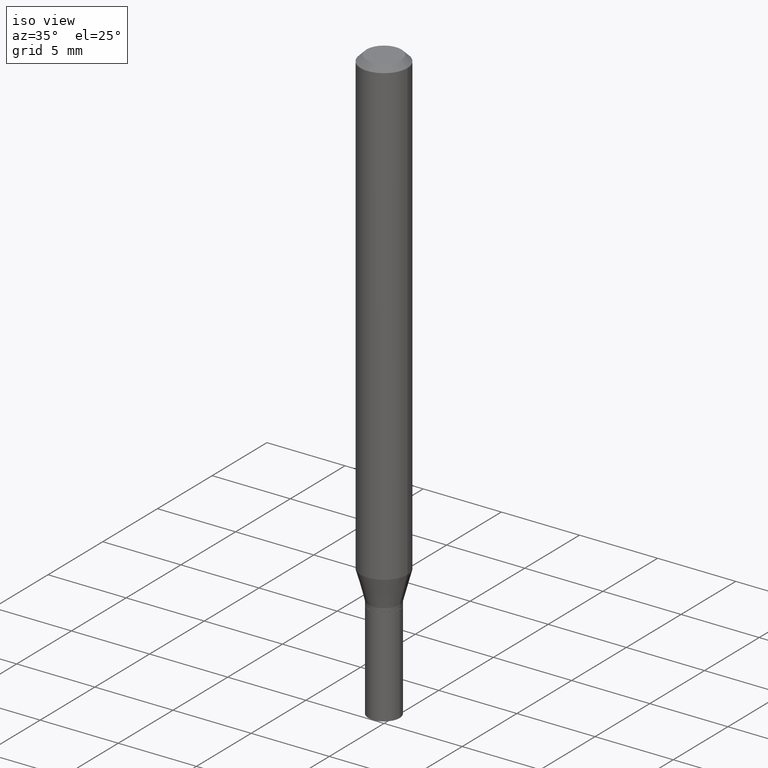
[diagram: clean part render]
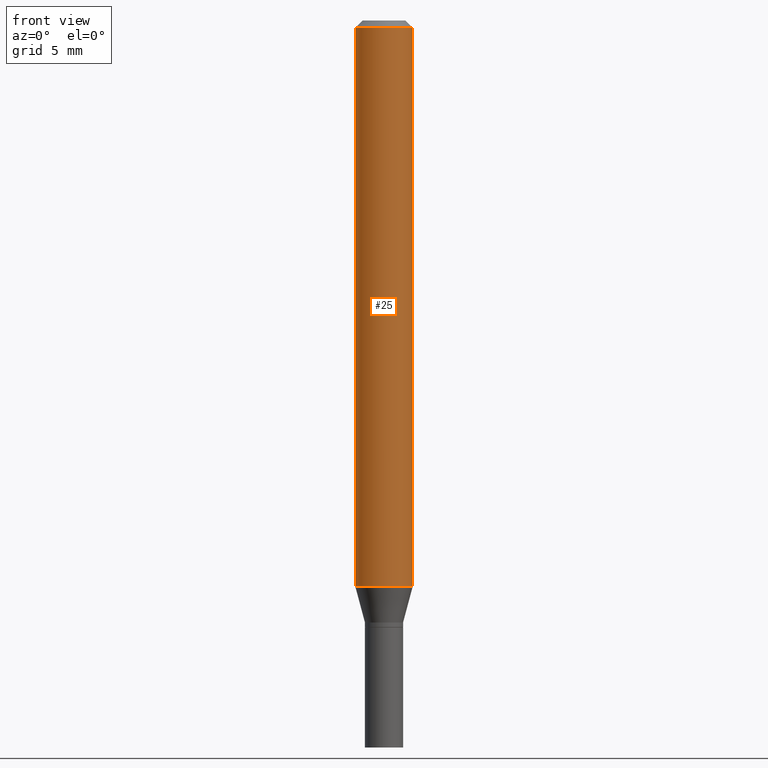
[diagram: tour spotlight — one face highlighted and labeled with its STEP entity id]
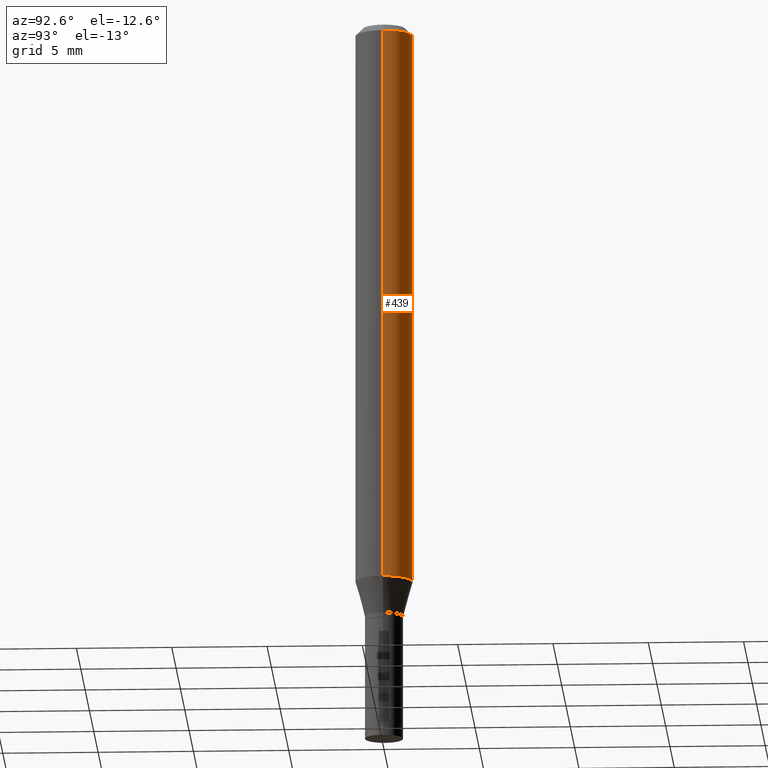
[diagram: tour spotlight — one face highlighted and labeled with its STEP entity id]
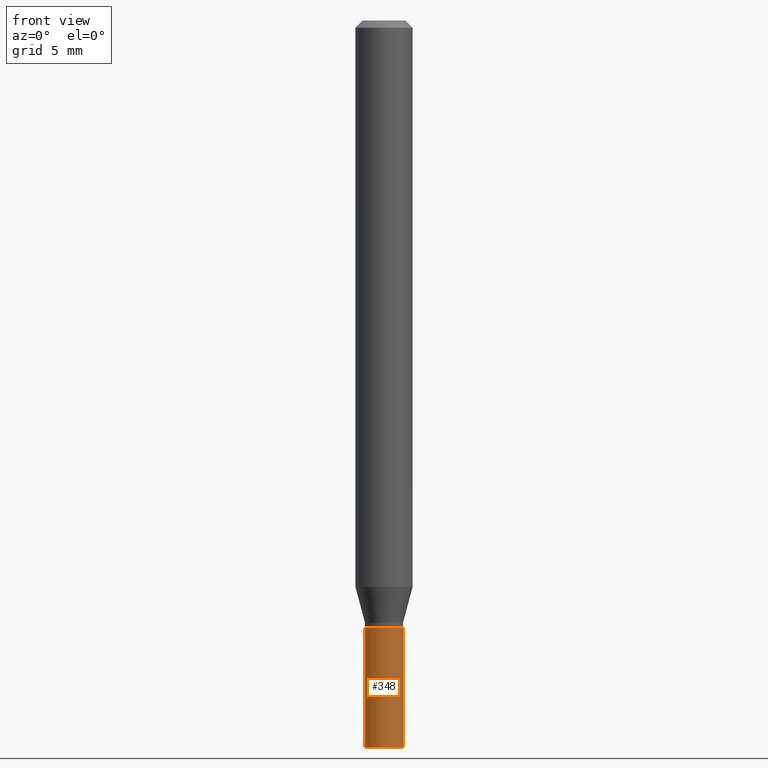
[diagram: tour spotlight — one face highlighted and labeled with its STEP entity id]
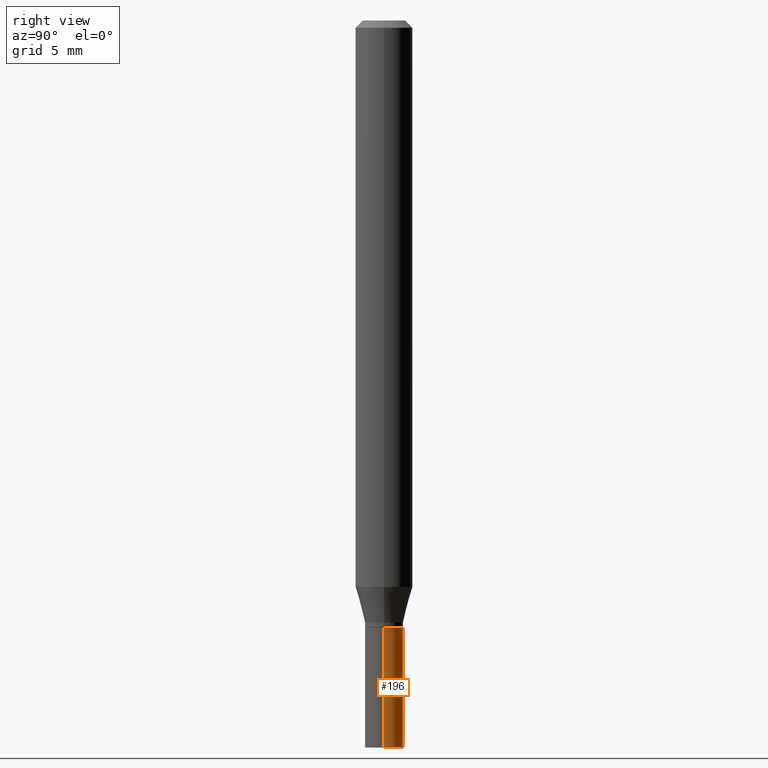
[diagram: tour spotlight — one face highlighted and labeled with its STEP entity id]
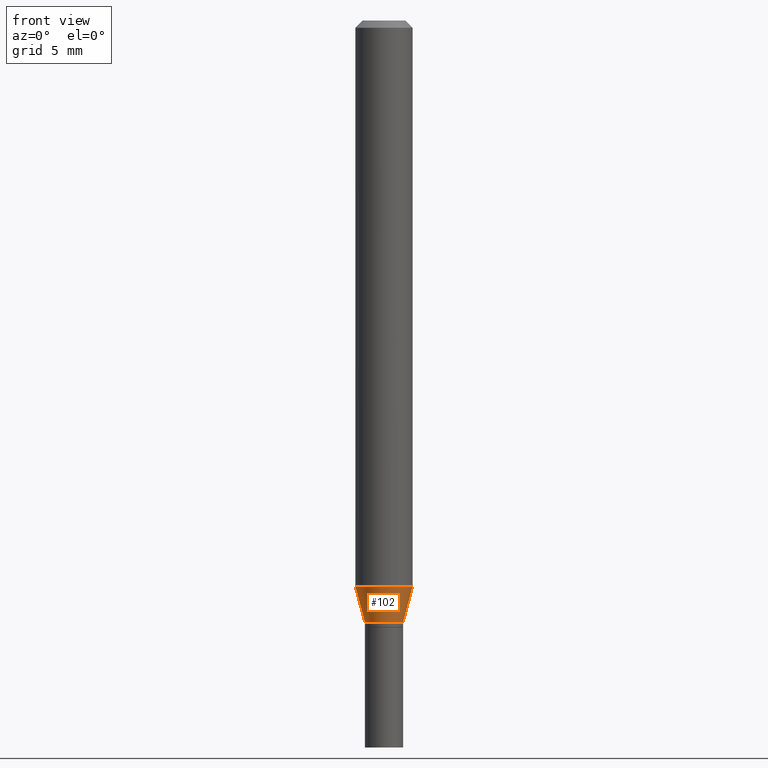
[diagram: tour spotlight — one face highlighted and labeled with its STEP entity id]
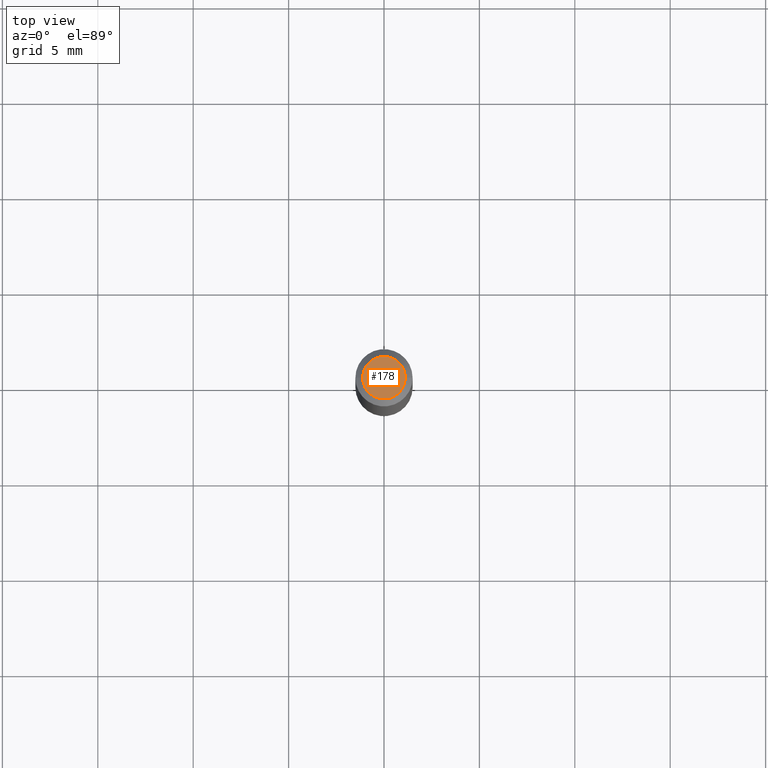
[diagram: tour spotlight — one face highlighted and labeled with its STEP entity id]
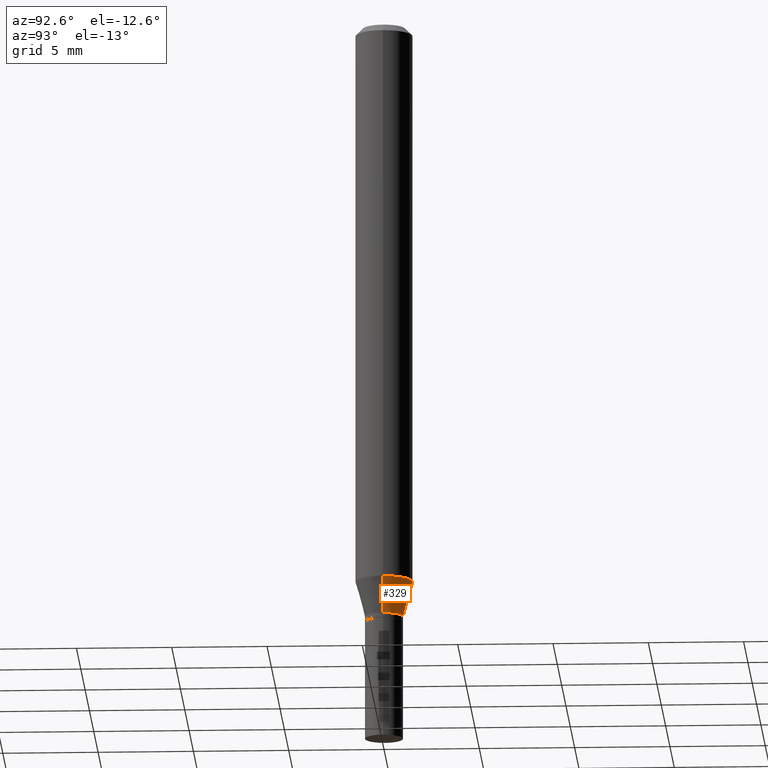
[diagram: tour spotlight — one face highlighted and labeled with its STEP entity id]
A machine part: a face-by-face anatomy tour. The part has 16 B-rep faces; the first image is the clean iso view, then the 7 largest visible faces are spotlighted one at a time (largest first), each with its STEP entity span.

Face 1 — front view, entity #25. In plain terms, the highlighted cylindrical surface (edge-blend (fillet) strip) has radius 1.4999 mm, axis along (-0, 0, 1).
Definition (entity closure, byte-faithful):
#18 = CARTESIAN_POINT ( 'NONE',  ( 0.000000000000000000, 0.000000000000000000, 0.000000000000000000 ) ) ;
#20 = DIRECTION ( 'NONE',  ( 1.000000000000000000, -6.982962677686266711E-15, 0.000000000000000000 ) ) ;
#24 = DIRECTION ( 'NONE',  ( -2.445468806185136597E-29, 3.491481338843145583E-15, 1.000000000000000000 ) ) ;
#25 = ADVANCED_FACE ( 'NONE', ( #55 ), #110, .T. ) ;
#27 = CARTESIAN_POINT ( 'NONE',  ( 0.05904999999999999832, -4.123439461173740327E-16, 2.879382386107500220E-30 ) ) ;
#44 = AXIS2_PLACEMENT_3D ( 'NONE', #18, #328, #414 ) ;
#55 = FACE_OUTER_BOUND ( 'NONE', #342, .T. ) ;
#63 = VERTEX_POINT ( 'NONE', #441 ) ;
#83 = AXIS2_PLACEMENT_3D ( 'NONE', #219, #111, #20 ) ;
#87 = CARTESIAN_POINT ( 'NONE',  ( 2.857477964771687854E-29, -4.079721223563435908E-15, -1.168478599090893466 ) ) ;
#97 = ORIENTED_EDGE ( 'NONE', *, *, #213, .F. ) ;
#98 = CIRCLE ( 'NONE', #83, 0.05904999999999999832 ) ;
#110 = CYLINDRICAL_SURFACE ( 'NONE', #44, 0.05904999999999999832 ) ;
#111 = DIRECTION ( 'NONE',  ( -2.445468806185136597E-29, 3.491481338843145583E-15, 1.000000000000000000 ) ) ;
#153 = EDGE_CURVE ( 'NONE', #63, #188, #451, .T. ) ;
#168 = VERTEX_POINT ( 'NONE', #461 ) ;
#172 = ORIENTED_EDGE ( 'NONE', *, *, #153, .T. ) ;
#188 = VERTEX_POINT ( 'NONE', #327 ) ;
#190 = ORIENTED_EDGE ( 'NONE', *, *, #273, .F. ) ;
#192 = AXIS2_PLACEMENT_3D ( 'NONE', #87, #24, #220 ) ;
#213 = EDGE_CURVE ( 'NONE', #168, #259, #290, .T. ) ;
#219 = CARTESIAN_POINT ( 'NONE',  ( 3.668203209277705088E-31, -5.237222008264718399E-17, -0.01499999999999999944 ) ) ;
#220 = DIRECTION ( 'NONE',  ( 1.000000000000000000, -6.982962677686273021E-15, 0.000000000000000000 ) ) ;
#233 = DIRECTION ( 'NONE',  ( -2.445468806185136877E-29, 3.491481338843145188E-15, 1.000000000000000000 ) ) ;
#250 = VECTOR ( 'NONE', #297, 39.37007874015748143 ) ;
#259 = VERTEX_POINT ( 'NONE', #401 ) ;
#263 = ORIENTED_EDGE ( 'NONE', *, *, #289, .T. ) ;
#273 = EDGE_CURVE ( 'NONE', #259, #188, #98, .T. ) ;
#289 = EDGE_CURVE ( 'NONE', #168, #63, #410, .T. ) ;
#290 = LINE ( 'NONE', #319, #292 ) ;
#292 = VECTOR ( 'NONE', #233, 39.37007874015748143 ) ;
#297 = DIRECTION ( 'NONE',  ( -2.445468806185136877E-29, 3.491481338843145188E-15, 1.000000000000000000 ) ) ;
#319 = CARTESIAN_POINT ( 'NONE',  ( -0.05904999999999999832, 4.195754854663391478E-16, -2.904631170795521892E-30 ) ) ;
#327 = CARTESIAN_POINT ( 'NONE',  ( 0.05904999999999999832, -4.647161662000212105E-16, -0.01499999999999999944 ) ) ;
#328 = DIRECTION ( 'NONE',  ( -2.445468806185136597E-29, 3.491481338843145583E-15, 1.000000000000000000 ) ) ;
#342 = EDGE_LOOP ( 'NONE', ( #97, #263, #172, #190 ) ) ;
#401 = CARTESIAN_POINT ( 'NONE',  ( -0.05904999999999999832, -1.646471236356702198E-15, -0.01499999999999999944 ) ) ;
#410 = CIRCLE ( 'NONE', #192, 0.05904999999999999832 ) ;
#414 = DIRECTION ( 'NONE',  ( 1.000000000000000000, -6.982962677686266711E-15, 4.876176775795936353E-29 ) ) ;
#441 = CARTESIAN_POINT ( 'NONE',  ( 0.05904999999999999832, -4.492065169680810039E-15, -1.168478599090893466 ) ) ;
#451 = LINE ( 'NONE', #27, #250 ) ;
#461 = CARTESIAN_POINT ( 'NONE',  ( -0.05904999999999999832, -3.660145738097096415E-15, -1.168478599090893466 ) ) ;

Face 2 — auxiliary view, entity #439. In plain terms, the highlighted cylindrical surface (edge-blend (fillet) strip) has radius 1.4999 mm, axis along (-0, 0, 1).
Definition (entity closure, byte-faithful):
#14 = DIRECTION ( 'NONE',  ( 1.000000000000000000, -6.982962677686273021E-15, 0.000000000000000000 ) ) ;
#27 = CARTESIAN_POINT ( 'NONE',  ( 0.05904999999999999832, -4.123439461173740327E-16, 2.879382386107500220E-30 ) ) ;
#45 = AXIS2_PLACEMENT_3D ( 'NONE', #370, #432, #436 ) ;
#47 = EDGE_CURVE ( 'NONE', #63, #168, #446, .T. ) ;
#63 = VERTEX_POINT ( 'NONE', #441 ) ;
#74 = AXIS2_PLACEMENT_3D ( 'NONE', #366, #211, #394 ) ;
#94 = ORIENTED_EDGE ( 'NONE', *, *, #47, .T. ) ;
#108 = CARTESIAN_POINT ( 'NONE',  ( 2.857477964771687854E-29, -4.079721223563435908E-15, -1.168478599090893466 ) ) ;
#141 = ORIENTED_EDGE ( 'NONE', *, *, #181, .F. ) ;
#145 = DIRECTION ( 'NONE',  ( -2.445468806185136597E-29, 3.491481338843145583E-15, 1.000000000000000000 ) ) ;
#153 = EDGE_CURVE ( 'NONE', #63, #188, #451, .T. ) ;
#168 = VERTEX_POINT ( 'NONE', #461 ) ;
#181 = EDGE_CURVE ( 'NONE', #188, #259, #392, .T. ) ;
#188 = VERTEX_POINT ( 'NONE', #327 ) ;
#200 = ORIENTED_EDGE ( 'NONE', *, *, #153, .F. ) ;
#211 = DIRECTION ( 'NONE',  ( -2.445468806185136597E-29, 3.491481338843145583E-15, 1.000000000000000000 ) ) ;
#213 = EDGE_CURVE ( 'NONE', #168, #259, #290, .T. ) ;
#233 = DIRECTION ( 'NONE',  ( -2.445468806185136877E-29, 3.491481338843145188E-15, 1.000000000000000000 ) ) ;
#246 = EDGE_LOOP ( 'NONE', ( #94, #454, #141, #200 ) ) ;
#250 = VECTOR ( 'NONE', #297, 39.37007874015748143 ) ;
#259 = VERTEX_POINT ( 'NONE', #401 ) ;
#290 = LINE ( 'NONE', #319, #292 ) ;
#292 = VECTOR ( 'NONE', #233, 39.37007874015748143 ) ;
#297 = DIRECTION ( 'NONE',  ( -2.445468806185136877E-29, 3.491481338843145188E-15, 1.000000000000000000 ) ) ;
#312 = AXIS2_PLACEMENT_3D ( 'NONE', #108, #145, #14 ) ;
#318 = CYLINDRICAL_SURFACE ( 'NONE', #45, 0.05904999999999999832 ) ;
#319 = CARTESIAN_POINT ( 'NONE',  ( -0.05904999999999999832, 4.195754854663391478E-16, -2.904631170795521892E-30 ) ) ;
#327 = CARTESIAN_POINT ( 'NONE',  ( 0.05904999999999999832, -4.647161662000212105E-16, -0.01499999999999999944 ) ) ;
#366 = CARTESIAN_POINT ( 'NONE',  ( 3.668203209277705088E-31, -5.237222008264718399E-17, -0.01499999999999999944 ) ) ;
#370 = CARTESIAN_POINT ( 'NONE',  ( 0.000000000000000000, 0.000000000000000000, 0.000000000000000000 ) ) ;
#389 = FACE_OUTER_BOUND ( 'NONE', #246, .T. ) ;
#392 = CIRCLE ( 'NONE', #74, 0.05904999999999999832 ) ;
#394 = DIRECTION ( 'NONE',  ( 1.000000000000000000, -6.982962677686266711E-15, 0.000000000000000000 ) ) ;
#401 = CARTESIAN_POINT ( 'NONE',  ( -0.05904999999999999832, -1.646471236356702198E-15, -0.01499999999999999944 ) ) ;
#432 = DIRECTION ( 'NONE',  ( -2.445468806185136597E-29, 3.491481338843145583E-15, 1.000000000000000000 ) ) ;
#436 = DIRECTION ( 'NONE',  ( 1.000000000000000000, -6.982962677686266711E-15, 4.876176775795936353E-29 ) ) ;
#439 = ADVANCED_FACE ( 'NONE', ( #389 ), #318, .T. ) ;
#441 = CARTESIAN_POINT ( 'NONE',  ( 0.05904999999999999832, -4.492065169680810039E-15, -1.168478599090893466 ) ) ;
#446 = CIRCLE ( 'NONE', #312, 0.05904999999999999832 ) ;
#451 = LINE ( 'NONE', #27, #250 ) ;
#454 = ORIENTED_EDGE ( 'NONE', *, *, #213, .T. ) ;
#461 = CARTESIAN_POINT ( 'NONE',  ( -0.05904999999999999832, -3.660145738097096415E-15, -1.168478599090893466 ) ) ;

Face 3 — front view, entity #348. In plain terms, the highlighted cylindrical surface (edge-blend (fillet) strip) has radius 0.9995 mm, axis along (-0, 0, 1).
Definition (entity closure, byte-faithful):
#3 = ORIENTED_EDGE ( 'NONE', *, *, #120, .F. ) ;
#15 = AXIS2_PLACEMENT_3D ( 'NONE', #126, #82, #361 ) ;
#19 = FACE_OUTER_BOUND ( 'NONE', #143, .T. ) ;
#57 = CIRCLE ( 'NONE', #422, 0.03935000000000000303 ) ;
#82 = DIRECTION ( 'NONE',  ( -2.445468806185136597E-29, 3.491481338843145583E-15, 1.000000000000000000 ) ) ;
#95 = LINE ( 'NONE', #344, #154 ) ;
#105 = VERTEX_POINT ( 'NONE', #390 ) ;
#117 = EDGE_CURVE ( 'NONE', #237, #272, #431, .T. ) ;
#120 = EDGE_CURVE ( 'NONE', #105, #386, #95, .T. ) ;
#126 = CARTESIAN_POINT ( 'NONE',  ( 0.000000000000000000, 0.000000000000000000, 0.000000000000000000 ) ) ;
#136 = CARTESIAN_POINT ( 'NONE',  ( 0.03935000000000000303, -5.512001589631673094E-15, -1.500000000000000222 ) ) ;
#143 = EDGE_LOOP ( 'NONE', ( #3, #296, #403, #212 ) ) ;
#154 = VECTOR ( 'NONE', #240, 39.37007874015748143 ) ;
#157 = CARTESIAN_POINT ( 'NONE',  ( 3.668203209277704895E-29, -5.237222008264718177E-15, -1.500000000000000222 ) ) ;
#160 = EDGE_CURVE ( 'NONE', #386, #272, #57, .T. ) ;
#163 = CARTESIAN_POINT ( 'NONE',  ( 0.03935000000000000303, -4.646114217598574191E-15, -1.252000000000000224 ) ) ;
#195 = CARTESIAN_POINT ( 'NONE',  ( -0.03935000000000000303, -4.524679755726570119E-15, -1.252000000000000224 ) ) ;
#197 = DIRECTION ( 'NONE',  ( 1.000000000000000000, -6.982962677686269077E-15, 0.000000000000000000 ) ) ;
#212 = ORIENTED_EDGE ( 'NONE', *, *, #160, .F. ) ;
#224 = DIRECTION ( 'NONE',  ( 1.000000000000000000, -6.982962677686269077E-15, 0.000000000000000000 ) ) ;
#237 = VERTEX_POINT ( 'NONE', #136 ) ;
#240 = DIRECTION ( 'NONE',  ( -2.445468806185136877E-29, 3.491481338843145188E-15, 1.000000000000000000 ) ) ;
#260 = VECTOR ( 'NONE', #428, 39.37007874015748143 ) ;
#264 = CARTESIAN_POINT ( 'NONE',  ( 3.061726945343791391E-29, -4.371334636231619274E-15, -1.252000000000000224 ) ) ;
#270 = CARTESIAN_POINT ( 'NONE',  ( 0.03935000000000000303, -2.747795813669546211E-16, 1.918775561275701074E-30 ) ) ;
#272 = VERTEX_POINT ( 'NONE', #163 ) ;
#296 = ORIENTED_EDGE ( 'NONE', *, *, #357, .T. ) ;
#344 = CARTESIAN_POINT ( 'NONE',  ( -0.03935000000000000303, 2.795985665215994447E-16, -1.935600958015305291E-30 ) ) ;
#348 = ADVANCED_FACE ( 'NONE', ( #19 ), #452, .T. ) ;
#357 = EDGE_CURVE ( 'NONE', #105, #237, #405, .T. ) ;
#361 = DIRECTION ( 'NONE',  ( 1.000000000000000000, -6.982962677686266711E-15, 4.876176775795936353E-29 ) ) ;
#379 = DIRECTION ( 'NONE',  ( -2.445468806185136597E-29, 3.491481338843145583E-15, 1.000000000000000000 ) ) ;
#386 = VERTEX_POINT ( 'NONE', #195 ) ;
#390 = CARTESIAN_POINT ( 'NONE',  ( -0.03935000000000000303, -4.524679755726570119E-15, -1.500000000000000222 ) ) ;
#403 = ORIENTED_EDGE ( 'NONE', *, *, #117, .T. ) ;
#405 = CIRCLE ( 'NONE', #417, 0.03935000000000000303 ) ;
#417 = AXIS2_PLACEMENT_3D ( 'NONE', #157, #379, #197 ) ;
#418 = DIRECTION ( 'NONE',  ( -2.445468806185136597E-29, 3.491481338843145583E-15, 1.000000000000000000 ) ) ;
#422 = AXIS2_PLACEMENT_3D ( 'NONE', #264, #418, #224 ) ;
#428 = DIRECTION ( 'NONE',  ( -2.445468806185136877E-29, 3.491481338843145188E-15, 1.000000000000000000 ) ) ;
#431 = LINE ( 'NONE', #270, #260 ) ;
#452 = CYLINDRICAL_SURFACE ( 'NONE', #15, 0.03935000000000000303 ) ;

Face 4 — right view, entity #196. In plain terms, the highlighted cylindrical surface (edge-blend (fillet) strip) has radius 0.9995 mm, axis along (-0, 0, 1).
Definition (entity closure, byte-faithful):
#7 = DIRECTION ( 'NONE',  ( 1.000000000000000000, -6.982962677686269077E-15, 0.000000000000000000 ) ) ;
#22 = AXIS2_PLACEMENT_3D ( 'NONE', #355, #252, #406 ) ;
#68 = EDGE_CURVE ( 'NONE', #272, #386, #375, .T. ) ;
#89 = AXIS2_PLACEMENT_3D ( 'NONE', #450, #443, #426 ) ;
#95 = LINE ( 'NONE', #344, #154 ) ;
#105 = VERTEX_POINT ( 'NONE', #390 ) ;
#107 = ORIENTED_EDGE ( 'NONE', *, *, #228, .T. ) ;
#109 = AXIS2_PLACEMENT_3D ( 'NONE', #310, #210, #7 ) ;
#117 = EDGE_CURVE ( 'NONE', #237, #272, #431, .T. ) ;
#118 = CYLINDRICAL_SURFACE ( 'NONE', #89, 0.03935000000000000303 ) ;
#120 = EDGE_CURVE ( 'NONE', #105, #386, #95, .T. ) ;
#133 = ORIENTED_EDGE ( 'NONE', *, *, #68, .F. ) ;
#136 = CARTESIAN_POINT ( 'NONE',  ( 0.03935000000000000303, -5.512001589631673094E-15, -1.500000000000000222 ) ) ;
#137 = ORIENTED_EDGE ( 'NONE', *, *, #117, .F. ) ;
#154 = VECTOR ( 'NONE', #240, 39.37007874015748143 ) ;
#163 = CARTESIAN_POINT ( 'NONE',  ( 0.03935000000000000303, -4.646114217598574191E-15, -1.252000000000000224 ) ) ;
#195 = CARTESIAN_POINT ( 'NONE',  ( -0.03935000000000000303, -4.524679755726570119E-15, -1.252000000000000224 ) ) ;
#196 = ADVANCED_FACE ( 'NONE', ( #449 ), #118, .T. ) ;
#210 = DIRECTION ( 'NONE',  ( -2.445468806185136597E-29, 3.491481338843145583E-15, 1.000000000000000000 ) ) ;
#228 = EDGE_CURVE ( 'NONE', #237, #105, #254, .T. ) ;
#237 = VERTEX_POINT ( 'NONE', #136 ) ;
#240 = DIRECTION ( 'NONE',  ( -2.445468806185136877E-29, 3.491481338843145188E-15, 1.000000000000000000 ) ) ;
#252 = DIRECTION ( 'NONE',  ( -2.445468806185136597E-29, 3.491481338843145583E-15, 1.000000000000000000 ) ) ;
#254 = CIRCLE ( 'NONE', #109, 0.03935000000000000303 ) ;
#260 = VECTOR ( 'NONE', #428, 39.37007874015748143 ) ;
#270 = CARTESIAN_POINT ( 'NONE',  ( 0.03935000000000000303, -2.747795813669546211E-16, 1.918775561275701074E-30 ) ) ;
#272 = VERTEX_POINT ( 'NONE', #163 ) ;
#278 = ORIENTED_EDGE ( 'NONE', *, *, #120, .T. ) ;
#310 = CARTESIAN_POINT ( 'NONE',  ( 3.668203209277704895E-29, -5.237222008264718177E-15, -1.500000000000000222 ) ) ;
#337 = EDGE_LOOP ( 'NONE', ( #107, #278, #133, #137 ) ) ;
#344 = CARTESIAN_POINT ( 'NONE',  ( -0.03935000000000000303, 2.795985665215994447E-16, -1.935600958015305291E-30 ) ) ;
#355 = CARTESIAN_POINT ( 'NONE',  ( 3.061726945343791391E-29, -4.371334636231619274E-15, -1.252000000000000224 ) ) ;
#375 = CIRCLE ( 'NONE', #22, 0.03935000000000000303 ) ;
#386 = VERTEX_POINT ( 'NONE', #195 ) ;
#390 = CARTESIAN_POINT ( 'NONE',  ( -0.03935000000000000303, -4.524679755726570119E-15, -1.500000000000000222 ) ) ;
#406 = DIRECTION ( 'NONE',  ( 1.000000000000000000, -6.982962677686269077E-15, 0.000000000000000000 ) ) ;
#426 = DIRECTION ( 'NONE',  ( 1.000000000000000000, -6.982962677686266711E-15, 4.876176775795936353E-29 ) ) ;
#428 = DIRECTION ( 'NONE',  ( -2.445468806185136877E-29, 3.491481338843145188E-15, 1.000000000000000000 ) ) ;
#431 = LINE ( 'NONE', #270, #260 ) ;
#443 = DIRECTION ( 'NONE',  ( -2.445468806185136597E-29, 3.491481338843145583E-15, 1.000000000000000000 ) ) ;
#449 = FACE_OUTER_BOUND ( 'NONE', #337, .T. ) ;
#450 = CARTESIAN_POINT ( 'NONE',  ( 0.000000000000000000, 0.000000000000000000, 0.000000000000000000 ) ) ;

Face 5 — front view, entity #102. In plain terms, the highlighted conical surface has half-angle 15 deg.
Definition (entity closure, byte-faithful):
#4 = CARTESIAN_POINT ( 'NONE',  ( -0.03934999999999993364, -4.056821256321588230E-15, -1.241999999999999993 ) ) ;
#8 = ORIENTED_EDGE ( 'NONE', *, *, #289, .F. ) ;
#24 = DIRECTION ( 'NONE',  ( -2.445468806185136597E-29, 3.491481338843145583E-15, 1.000000000000000000 ) ) ;
#29 = EDGE_CURVE ( 'NONE', #300, #63, #363, .T. ) ;
#36 = DIRECTION ( 'NONE',  ( -0.2588190451025224603, 5.211531920934556564E-15, 0.9659258262890678681 ) ) ;
#51 = DIRECTION ( 'NONE',  ( -2.445468806185136597E-29, 3.491481338843145583E-15, 1.000000000000000000 ) ) ;
#62 = DIRECTION ( 'NONE',  ( -2.445468806185136597E-29, 3.491481338843145583E-15, 1.000000000000000000 ) ) ;
#63 = VERTEX_POINT ( 'NONE', #441 ) ;
#72 = EDGE_CURVE ( 'NONE', #234, #300, #402, .T. ) ;
#87 = CARTESIAN_POINT ( 'NONE',  ( 2.857477964771687854E-29, -4.079721223563435908E-15, -1.168478599090893466 ) ) ;
#100 = CARTESIAN_POINT ( 'NONE',  ( -0.03934999999999993364, -3.858483497209341928E-15, -1.241999999999999993 ) ) ;
#102 = ADVANCED_FACE ( 'NONE', ( #424 ), #184, .T. ) ;
#150 = AXIS2_PLACEMENT_3D ( 'NONE', #381, #62, #232 ) ;
#168 = VERTEX_POINT ( 'NONE', #461 ) ;
#175 = DIRECTION ( 'NONE',  ( 0.2588190451025224603, 1.565188264969613685E-15, 0.9659258262890678681 ) ) ;
#184 = CONICAL_SURFACE ( 'NONE', #150, 0.03934999999999993364, 0.2617993877991511842 ) ;
#192 = AXIS2_PLACEMENT_3D ( 'NONE', #87, #24, #220 ) ;
#216 = CARTESIAN_POINT ( 'NONE',  ( 3.037272257281939846E-29, -4.336419822843186836E-15, -1.241999999999999993 ) ) ;
#220 = DIRECTION ( 'NONE',  ( 1.000000000000000000, -6.982962677686273021E-15, 0.000000000000000000 ) ) ;
#223 = EDGE_LOOP ( 'NONE', ( #345, #464, #316, #8 ) ) ;
#229 = AXIS2_PLACEMENT_3D ( 'NONE', #216, #51, #408 ) ;
#232 = DIRECTION ( 'NONE',  ( 1.000000000000000000, -6.982962677686269077E-15, 0.000000000000000000 ) ) ;
#234 = VERTEX_POINT ( 'NONE', #100 ) ;
#251 = EDGE_CURVE ( 'NONE', #234, #168, #391, .T. ) ;
#283 = VECTOR ( 'NONE', #175, 39.37007874015748143 ) ;
#285 = CARTESIAN_POINT ( 'NONE',  ( 0.03934999999999993364, -4.611199404210140965E-15, -1.241999999999999993 ) ) ;
#289 = EDGE_CURVE ( 'NONE', #168, #63, #410, .T. ) ;
#291 = CARTESIAN_POINT ( 'NONE',  ( 0.03934999999999993364, -4.611199404210140965E-15, -1.241999999999999993 ) ) ;
#300 = VERTEX_POINT ( 'NONE', #291 ) ;
#316 = ORIENTED_EDGE ( 'NONE', *, *, #29, .T. ) ;
#345 = ORIENTED_EDGE ( 'NONE', *, *, #251, .F. ) ;
#363 = LINE ( 'NONE', #285, #283 ) ;
#381 = CARTESIAN_POINT ( 'NONE',  ( 3.037272257281939846E-29, -4.336419822843186836E-15, -1.241999999999999993 ) ) ;
#391 = LINE ( 'NONE', #4, #440 ) ;
#402 = CIRCLE ( 'NONE', #229, 0.03934999999999993364 ) ;
#408 = DIRECTION ( 'NONE',  ( 1.000000000000000000, -6.982962677686269077E-15, 0.000000000000000000 ) ) ;
#410 = CIRCLE ( 'NONE', #192, 0.05904999999999999832 ) ;
#424 = FACE_OUTER_BOUND ( 'NONE', #223, .T. ) ;
#440 = VECTOR ( 'NONE', #36, 39.37007874015748143 ) ;
#441 = CARTESIAN_POINT ( 'NONE',  ( 0.05904999999999999832, -4.492065169680810039E-15, -1.168478599090893466 ) ) ;
#461 = CARTESIAN_POINT ( 'NONE',  ( -0.05904999999999999832, -3.660145738097096415E-15, -1.168478599090893466 ) ) ;
#464 = ORIENTED_EDGE ( 'NONE', *, *, #72, .T. ) ;

Face 6 — top view, entity #178. In plain terms, the highlighted planar face has unit normal (0, -0, -1).
Definition (entity closure, byte-faithful):
#5 = VERTEX_POINT ( 'NONE', #148 ) ;
#65 = EDGE_LOOP ( 'NONE', ( #400, #307 ) ) ;
#80 = DIRECTION ( 'NONE',  ( 1.000000000000000000, -6.982962677686265922E-15, 4.819687581474398999E-29 ) ) ;
#103 = CARTESIAN_POINT ( 'NONE',  ( 0.04404999999999999888, -3.798447818264454163E-16, 3.533548453838733521E-16 ) ) ;
#104 = CARTESIAN_POINT ( 'NONE',  ( -8.641182519006283330E-45, 1.233731848647590289E-30, 3.533548453838708869E-16 ) ) ;
#119 = DIRECTION ( 'NONE',  ( -1.000000000000000000, 6.982962677686265922E-15, -4.876176775795935793E-29 ) ) ;
#144 = CARTESIAN_POINT ( 'NONE',  ( -8.641182519006283330E-45, 1.233731848647590289E-30, 3.533548453838708869E-16 ) ) ;
#148 = CARTESIAN_POINT ( 'NONE',  ( -0.04404999999999999888, 3.337856159934040055E-16, 3.533548453838686682E-16 ) ) ;
#173 = FACE_OUTER_BOUND ( 'NONE', #65, .T. ) ;
#178 = ADVANCED_FACE ( 'NONE', ( #173 ), #308, .F. ) ;
#217 = CIRCLE ( 'NONE', #275, 0.04404999999999999888 ) ;
#241 = VERTEX_POINT ( 'NONE', #103 ) ;
#262 = EDGE_CURVE ( 'NONE', #5, #241, #217, .T. ) ;
#275 = AXIS2_PLACEMENT_3D ( 'NONE', #144, #281, #438 ) ;
#281 = DIRECTION ( 'NONE',  ( -2.445468806185136597E-29, 3.491481338843145583E-15, 1.000000000000000000 ) ) ;
#288 = CIRCLE ( 'NONE', #453, 0.04404999999999999888 ) ;
#301 = DIRECTION ( 'NONE',  ( 2.438088387897960049E-29, -3.491481338843145188E-15, -1.000000000000000000 ) ) ;
#307 = ORIENTED_EDGE ( 'NONE', *, *, #442, .T. ) ;
#308 = PLANE ( 'NONE',  #341 ) ;
#315 = DIRECTION ( 'NONE',  ( -2.445468806185136597E-29, 3.491481338843145583E-15, 1.000000000000000000 ) ) ;
#341 = AXIS2_PLACEMENT_3D ( 'NONE', #396, #301, #119 ) ;
#396 = CARTESIAN_POINT ( 'NONE',  ( 3.075995059520799729E-16, 0.04404999999999999888, 2.287766971589489619E-17 ) ) ;
#400 = ORIENTED_EDGE ( 'NONE', *, *, #262, .T. ) ;
#438 = DIRECTION ( 'NONE',  ( 1.000000000000000000, -6.982962677686265922E-15, 4.819687581474398999E-29 ) ) ;
#442 = EDGE_CURVE ( 'NONE', #241, #5, #288, .T. ) ;
#453 = AXIS2_PLACEMENT_3D ( 'NONE', #104, #315, #80 ) ;

Face 7 — auxiliary view, entity #329. In plain terms, the highlighted conical surface has half-angle 15 deg.
Definition (entity closure, byte-faithful):
#4 = CARTESIAN_POINT ( 'NONE',  ( -0.03934999999999993364, -4.056821256321588230E-15, -1.241999999999999993 ) ) ;
#14 = DIRECTION ( 'NONE',  ( 1.000000000000000000, -6.982962677686273021E-15, 0.000000000000000000 ) ) ;
#29 = EDGE_CURVE ( 'NONE', #300, #63, #363, .T. ) ;
#35 = DIRECTION ( 'NONE',  ( 1.000000000000000000, -6.982962677686269077E-15, 0.000000000000000000 ) ) ;
#36 = DIRECTION ( 'NONE',  ( -0.2588190451025224603, 5.211531920934556564E-15, 0.9659258262890678681 ) ) ;
#47 = EDGE_CURVE ( 'NONE', #63, #168, #446, .T. ) ;
#63 = VERTEX_POINT ( 'NONE', #441 ) ;
#78 = ORIENTED_EDGE ( 'NONE', *, *, #29, .F. ) ;
#88 = EDGE_CURVE ( 'NONE', #300, #234, #299, .T. ) ;
#100 = CARTESIAN_POINT ( 'NONE',  ( -0.03934999999999993364, -3.858483497209341928E-15, -1.241999999999999993 ) ) ;
#108 = CARTESIAN_POINT ( 'NONE',  ( 2.857477964771687854E-29, -4.079721223563435908E-15, -1.168478599090893466 ) ) ;
#138 = ORIENTED_EDGE ( 'NONE', *, *, #47, .F. ) ;
#145 = DIRECTION ( 'NONE',  ( -2.445468806185136597E-29, 3.491481338843145583E-15, 1.000000000000000000 ) ) ;
#168 = VERTEX_POINT ( 'NONE', #461 ) ;
#175 = DIRECTION ( 'NONE',  ( 0.2588190451025224603, 1.565188264969613685E-15, 0.9659258262890678681 ) ) ;
#180 = AXIS2_PLACEMENT_3D ( 'NONE', #365, #331, #187 ) ;
#187 = DIRECTION ( 'NONE',  ( 1.000000000000000000, -6.982962677686269077E-15, 0.000000000000000000 ) ) ;
#202 = EDGE_LOOP ( 'NONE', ( #429, #354, #138, #78 ) ) ;
#234 = VERTEX_POINT ( 'NONE', #100 ) ;
#251 = EDGE_CURVE ( 'NONE', #234, #168, #391, .T. ) ;
#283 = VECTOR ( 'NONE', #175, 39.37007874015748143 ) ;
#285 = CARTESIAN_POINT ( 'NONE',  ( 0.03934999999999993364, -4.611199404210140965E-15, -1.241999999999999993 ) ) ;
#291 = CARTESIAN_POINT ( 'NONE',  ( 0.03934999999999993364, -4.611199404210140965E-15, -1.241999999999999993 ) ) ;
#299 = CIRCLE ( 'NONE', #415, 0.03934999999999993364 ) ;
#300 = VERTEX_POINT ( 'NONE', #291 ) ;
#312 = AXIS2_PLACEMENT_3D ( 'NONE', #108, #145, #14 ) ;
#322 = CONICAL_SURFACE ( 'NONE', #180, 0.03934999999999993364, 0.2617993877991511842 ) ;
#329 = ADVANCED_FACE ( 'NONE', ( #416 ), #322, .T. ) ;
#331 = DIRECTION ( 'NONE',  ( -2.445468806185136597E-29, 3.491481338843145583E-15, 1.000000000000000000 ) ) ;
#354 = ORIENTED_EDGE ( 'NONE', *, *, #251, .T. ) ;
#363 = LINE ( 'NONE', #285, #283 ) ;
#365 = CARTESIAN_POINT ( 'NONE',  ( 3.037272257281939846E-29, -4.336419822843186836E-15, -1.241999999999999993 ) ) ;
#376 = CARTESIAN_POINT ( 'NONE',  ( 3.037272257281939846E-29, -4.336419822843186836E-15, -1.241999999999999993 ) ) ;
#391 = LINE ( 'NONE', #4, #440 ) ;
#415 = AXIS2_PLACEMENT_3D ( 'NONE', #376, #459, #35 ) ;
#416 = FACE_OUTER_BOUND ( 'NONE', #202, .T. ) ;
#429 = ORIENTED_EDGE ( 'NONE', *, *, #88, .T. ) ;
#440 = VECTOR ( 'NONE', #36, 39.37007874015748143 ) ;
#441 = CARTESIAN_POINT ( 'NONE',  ( 0.05904999999999999832, -4.492065169680810039E-15, -1.168478599090893466 ) ) ;
#446 = CIRCLE ( 'NONE', #312, 0.05904999999999999832 ) ;
#459 = DIRECTION ( 'NONE',  ( -2.445468806185136597E-29, 3.491481338843145583E-15, 1.000000000000000000 ) ) ;
#461 = CARTESIAN_POINT ( 'NONE',  ( -0.05904999999999999832, -3.660145738097096415E-15, -1.168478599090893466 ) ) ;